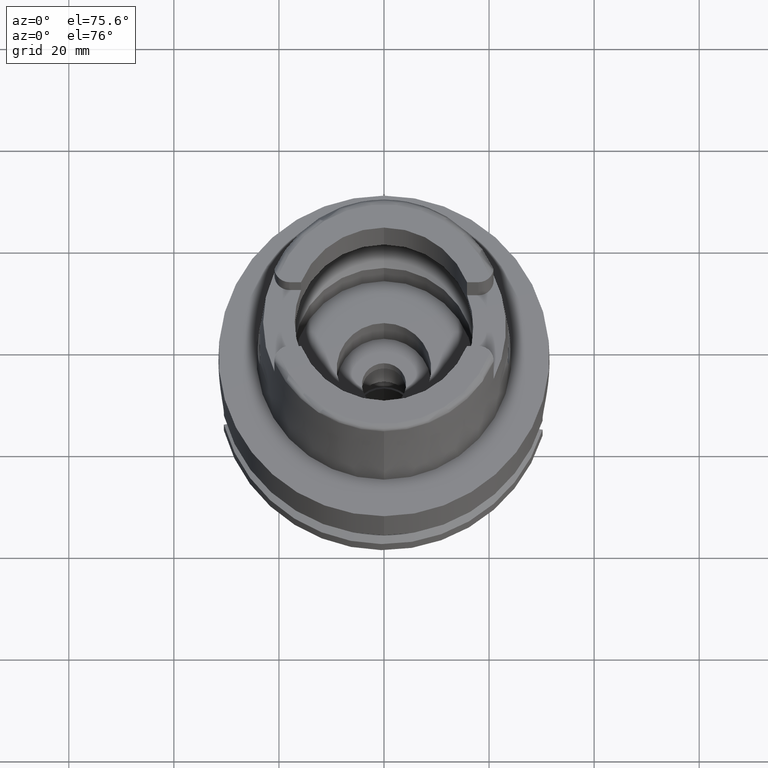
[diagram: clean part render]
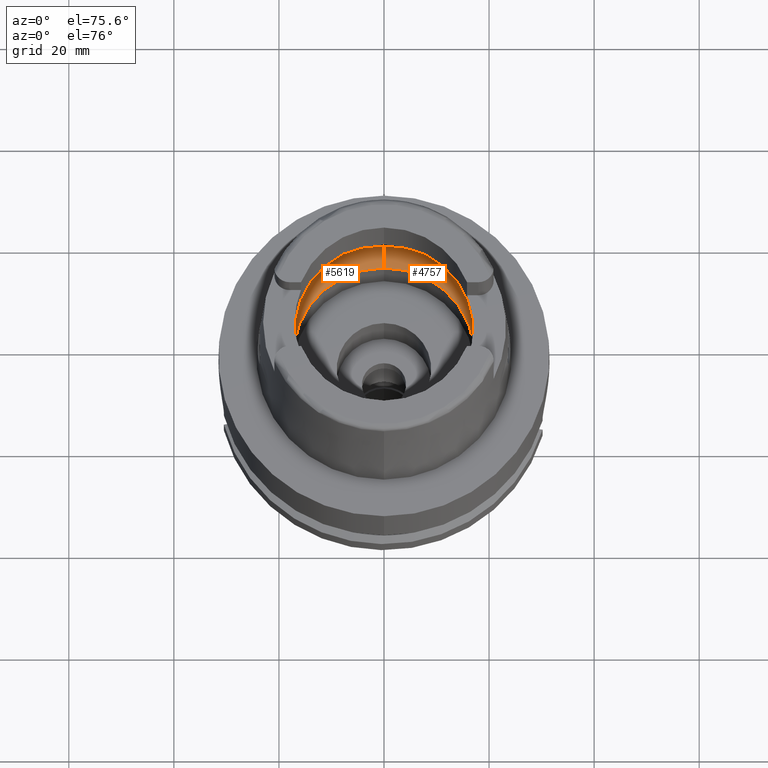
[diagram: same view with one multi-face feature highlighted, each face labeled with its STEP entity id]
A machine part, auxiliary view. The highlighted faces form ONE feature: a constant-radius fillet chain: 2 tangent blend faces with common blend radius 8 mm. The faces share edges in the B-rep.
Their STEP definitions:
[1] entity #4757 (Torus):
#22 = CARTESIAN_POINT ( 'NONE',  ( 0.0000000000000000000, 1.300407714776999850E-14, 6.186348233825000875 ) ) ;
#428 = CIRCLE ( 'NONE', #3576, 7.999999999999992895 ) ;
#443 = DIRECTION ( 'NONE',  ( 0.0000000000000000000, 0.0000000000000000000, -1.000000000000000000 ) ) ;
#448 = TOROIDAL_SURFACE ( 'NONE', #3597, 12.00000000000000000, 8.000000000000000000 ) ;
#707 = CARTESIAN_POINT ( 'NONE',  ( 19.91448758455283041, 1.610401092888342545, 5.612873060275781256 ) ) ;
#1073 = DIRECTION ( 'NONE',  ( 0.0000000000000000000, 0.0000000000000000000, -1.000000000000000000 ) ) ;
#1123 = DIRECTION ( 'NONE',  ( -1.000000000000000000, 0.0000000000000000000, 0.0000000000000000000 ) ) ;
#1145 = CARTESIAN_POINT ( 'NONE',  ( 19.88059069913698096, 2.158394907212736413, 5.925188472889173497 ) ) ;
#1162 = DIRECTION ( 'NONE',  ( 0.9922879323327794543, -0.1239542631244973381, 0.0000000000000000000 ) ) ;
#1213 = CARTESIAN_POINT ( 'NONE',  ( 19.92467892137705832, 1.357954799801602386, 5.504500142502863902 ) ) ;
#1405 = CARTESIAN_POINT ( 'NONE',  ( 19.92547292124042002, 1.334858430821708408, 5.495617893788528718 ) ) ;
#1511 = ORIENTED_EDGE ( 'NONE', *, *, #5877, .F. ) ;
#1598 = EDGE_CURVE ( 'NONE', #5377, #2093, #4919, .T. ) ;
#1600 = CARTESIAN_POINT ( 'NONE',  ( 19.92591877051988547, -1.321591573236226669, 5.490590281197120781 ) ) ;
#1606 = CARTESIAN_POINT ( 'NONE',  ( 0.0000000000000000000, -12.00000000000000000, 6.186348233825000875 ) ) ;
#1653 = CARTESIAN_POINT ( 'NONE',  ( 19.94340253376580918, -0.4848958549391096939, 5.274596266894370444 ) ) ;
#1687 = AXIS2_PLACEMENT_3D ( 'NONE', #2443, #3433, #4347 ) ;
#1690 = CARTESIAN_POINT ( 'NONE',  ( 19.92391832594157819, 1.379661882598573808, 5.512959091754853880 ) ) ;
#1722 = CARTESIAN_POINT ( 'NONE',  ( 19.93856728078323570, -0.8184016997814974603, 5.338643298039866814 ) ) ;
#1818 = CARTESIAN_POINT ( 'NONE',  ( 19.94501428475999560, 0.4959066315530564206, 5.249999999999998224 ) ) ;
#1915 = VERTEX_POINT ( 'NONE', #4480 ) ;
#2070 = CARTESIAN_POINT ( 'NONE',  ( 19.92647127844888999, -1.304861539412763838, 5.484338238559177015 ) ) ;
#2093 = VERTEX_POINT ( 'NONE', #5340 ) ;
#2163 = AXIS2_PLACEMENT_3D ( 'NONE', #4368, #5419, #2975 ) ;
#2266 = ORIENTED_EDGE ( 'NONE', *, *, #2594, .F. ) ;
#2443 = CARTESIAN_POINT ( 'NONE',  ( 0.0000000000000000000, 1.300407714776999850E-14, 6.186348233825000875 ) ) ;
#2577 = CARTESIAN_POINT ( 'NONE',  ( 19.93655259204049557, -0.9259503216086001354, 5.364516449228810657 ) ) ;
#2594 = EDGE_CURVE ( 'NONE', #5020, #4361, #428, .T. ) ;
#2633 = EDGE_LOOP ( 'NONE', ( #3096, #4007, #2266, #4338, #5872, #5812, #1511 ) ) ;
#2644 = CARTESIAN_POINT ( 'NONE',  ( 19.91820208730434061, 1.528663205433574479, 5.574770377084651507 ) ) ;
#2671 = CARTESIAN_POINT ( 'NONE',  ( 19.84575864665999845, 2.479085262491000030, 6.186348233825000875 ) ) ;
#2708 = CARTESIAN_POINT ( 'NONE',  ( 19.94501428475999916, 0.0000000000000000000, 5.250000000000000000 ) ) ;
#2837 = CARTESIAN_POINT ( 'NONE',  ( 19.84575864665999845, -2.479085262491000030, 6.186348233825000875 ) ) ;
#2843 = CARTESIAN_POINT ( 'NONE',  ( 0.0000000000000000000, 20.00000000000000000, 6.186348233825000875 ) ) ;
#2859 = DIRECTION ( 'NONE',  ( 0.0000000000000000000, -1.000000000000000000, 0.0000000000000000000 ) ) ;
#2975 = DIRECTION ( 'NONE',  ( 0.0000000000000000000, -1.000000000000000000, 0.0000000000000000000 ) ) ;
#3096 = ORIENTED_EDGE ( 'NONE', *, *, #5885, .F. ) ;
#3112 = CARTESIAN_POINT ( 'NONE',  ( 19.90056963212105856, 1.871013146673759620, 5.748159224276529145 ) ) ;
#3185 = EDGE_CURVE ( 'NONE', #3463, #2093, #3276, .T. ) ;
#3250 = B_SPLINE_CURVE_WITH_KNOTS ( 'NONE', 3,
 ( #2708, #4011, #1653, #1722, #2577, #3561, #5463, #5487, #4507, #2070, #3594, #1600, #5519, #4097, #5558 ),
 .UNSPECIFIED., .F., .F.,
 ( 4, 2, 2, 1, 1, 1, 2, 2, 4 ),
 ( 0.0000000000000000000, 0.2500000000000024425, 0.3750000000000036637, 0.4375000000000042188, 0.4687500000000043299, 0.4843750000000045519, 0.4921875000000045519, 0.5000000000000044409, 1.000000000000000000 ),
 .UNSPECIFIED. ) ;
#3276 = CIRCLE ( 'NONE', #3586, 7.999999999999992895 ) ;
#3433 = DIRECTION ( 'NONE',  ( 0.0000000000000000000, 0.0000000000000000000, -1.000000000000000000 ) ) ;
#3463 = VERTEX_POINT ( 'NONE', #4665 ) ;
#3561 = CARTESIAN_POINT ( 'NONE',  ( 19.93292615230355835, -1.081461345980708977, 5.408921120519162073 ) ) ;
#3576 = AXIS2_PLACEMENT_3D ( 'NONE', #4525, #5001, #5508 ) ;
#3577 = CARTESIAN_POINT ( 'NONE',  ( 0.0000000000000000000, 1.300407714776999850E-14, 6.186348233825000875 ) ) ;
#3586 = AXIS2_PLACEMENT_3D ( 'NONE', #1606, #1123, #3893 ) ;
#3594 = CARTESIAN_POINT ( 'NONE',  ( 19.92607463660266376, -1.316897531412940081, 5.488828948960996712 ) ) ;
#3597 = AXIS2_PLACEMENT_3D ( 'NONE', #22, #443, #2859 ) ;
#3699 = EDGE_CURVE ( 'NONE', #3463, #5020, #6001, .T. ) ;
#3893 = DIRECTION ( 'NONE',  ( 0.0000000000000000000, -0.6562500000000006661, -0.7545435292281016393 ) ) ;
#4007 = ORIENTED_EDGE ( 'NONE', *, *, #6109, .F. ) ;
#4011 = CARTESIAN_POINT ( 'NONE',  ( 19.94501428476000271, -0.2479294248912864707, 5.250000000000000000 ) ) ;
#4097 = CARTESIAN_POINT ( 'NONE',  ( 19.88332321193480468, -2.178370596672497328, 5.921391032934739229 ) ) ;
#4262 = CARTESIAN_POINT ( 'NONE',  ( 19.92518065070697730, 1.343443539031581091, 5.498897323770547629 ) ) ;
#4286 = CARTESIAN_POINT ( 'NONE',  ( 19.94501428475999916, 0.0000000000000000000, 5.250000000000000000 ) ) ;
#4321 = AXIS2_PLACEMENT_3D ( 'NONE', #3577, #1073, #1162 ) ;
#4338 = ORIENTED_EDGE ( 'NONE', *, *, #3699, .F. ) ;
#4347 = DIRECTION ( 'NONE',  ( 0.0000000000000000000, 1.000000000000000000, 0.0000000000000000000 ) ) ;
#4361 = VERTEX_POINT ( 'NONE', #2843 ) ;
#4368 = CARTESIAN_POINT ( 'NONE',  ( 0.0000000000000000000, 1.300407714776999850E-14, 0.1500000000000999700 ) ) ;
#4480 = CARTESIAN_POINT ( 'NONE',  ( 19.94501428475999916, 0.0000000000000000000, 5.250000000000000000 ) ) ;
#4507 = CARTESIAN_POINT ( 'NONE',  ( 19.92706151929149527, -1.286760697310783019, 5.477637534686534693 ) ) ;
#4525 = CARTESIAN_POINT ( 'NONE',  ( 0.0000000000000000000, 12.00000000000000000, 6.186348233825000875 ) ) ;
#4665 = CARTESIAN_POINT ( 'NONE',  ( 0.0000000000000000000, -17.25000000000000000, 0.1500000000000999700 ) ) ;
#4687 = B_SPLINE_CURVE_WITH_KNOTS ( 'NONE', 3,
 ( #5584, #5014, #1145, #3112, #5043, #707, #2644, #6020, #1690, #1213, #4262, #1405, #6170, #1818, #4286 ),
 .UNSPECIFIED., .F., .F.,
 ( 4, 2, 2, 1, 1, 1, 2, 2, 4 ),
 ( 0.0000000000000000000, 0.2499999999999967804, 0.3749999999999953371, 0.4374999999999946709, 0.4687499999999943934, 0.4843749999999942824, 0.4921874999999941713, 0.4999999999999941158, 1.000000000000000000 ),
 .UNSPECIFIED. ) ;
#4757 = ADVANCED_FACE ( 'NONE', ( #4783 ), #448, .F. ) ;
#4783 = FACE_OUTER_BOUND ( 'NONE', #2633, .T. ) ;
#4822 = CIRCLE ( 'NONE', #1687, 20.00000000000000000 ) ;
#4919 = CIRCLE ( 'NONE', #4321, 20.00000000000001421 ) ;
#5001 = DIRECTION ( 'NONE',  ( 1.000000000000000000, 0.0000000000000000000, 0.0000000000000000000 ) ) ;
#5014 = CARTESIAN_POINT ( 'NONE',  ( 19.86454025209263818, 2.328733350789800483, 6.053874409961354175 ) ) ;
#5020 = VERTEX_POINT ( 'NONE', #5924 ) ;
#5043 = CARTESIAN_POINT ( 'NONE',  ( 19.90654648685201167, 1.769930501896109565, 5.691839127009703958 ) ) ;
#5340 = CARTESIAN_POINT ( 'NONE',  ( 0.0000000000000000000, -20.00000000000000000, 6.186348233825000875 ) ) ;
#5377 = VERTEX_POINT ( 'NONE', #2837 ) ;
#5419 = DIRECTION ( 'NONE',  ( 0.0000000000000000000, 0.0000000000000000000, 1.000000000000000000 ) ) ;
#5463 = CARTESIAN_POINT ( 'NONE',  ( 19.93096183077939187, -1.157766814691080004, 5.432522770394313305 ) ) ;
#5487 = CARTESIAN_POINT ( 'NONE',  ( 19.92840569443704268, -1.244197915449397618, 5.462253908760141385 ) ) ;
#5508 = DIRECTION ( 'NONE',  ( 0.0000000000000000000, 0.6562500000000006661, -0.7545435292281016393 ) ) ;
#5519 = CARTESIAN_POINT ( 'NONE',  ( 19.90996142065803554, -1.795771334863238700, 5.670286579067099986 ) ) ;
#5558 = CARTESIAN_POINT ( 'NONE',  ( 19.84575864665999845, -2.479085262491000030, 6.186348233825000875 ) ) ;
#5584 = CARTESIAN_POINT ( 'NONE',  ( 19.84575864665999845, 2.479085262491000030, 6.186348233825000875 ) ) ;
#5787 = VERTEX_POINT ( 'NONE', #2671 ) ;
#5812 = ORIENTED_EDGE ( 'NONE', *, *, #1598, .F. ) ;
#5872 = ORIENTED_EDGE ( 'NONE', *, *, #3185, .T. ) ;
#5877 = EDGE_CURVE ( 'NONE', #1915, #5377, #3250, .T. ) ;
#5885 = EDGE_CURVE ( 'NONE', #5787, #1915, #4687, .T. ) ;
#5924 = CARTESIAN_POINT ( 'NONE',  ( 0.0000000000000000000, 17.25000000000000000, 0.1500000000000999700 ) ) ;
#6001 = CIRCLE ( 'NONE', #2163, 17.25000000000000000 ) ;
#6020 = CARTESIAN_POINT ( 'NONE',  ( 19.92208759317466615, 1.429891859895263462, 5.533074159369055778 ) ) ;
#6109 = EDGE_CURVE ( 'NONE', #4361, #5787, #4822, .T. ) ;
#6170 = CARTESIAN_POINT ( 'NONE',  ( 19.93856764937210002, 0.9457748455398172771, 5.348171637976009585 ) ) ;
[2] entity #5619 (Torus):
#42 = ORIENTED_EDGE ( 'NONE', *, *, #2594, .T. ) ;
#99 = DIRECTION ( 'NONE',  ( 0.0000000000000000000, 1.000000000000000000, 0.0000000000000000000 ) ) ;
#276 = VERTEX_POINT ( 'NONE', #5995 ) ;
#384 = CARTESIAN_POINT ( 'NONE',  ( -19.92607479997090181, 1.316895428534838430, 5.488828160326498562 ) ) ;
#410 = CARTESIAN_POINT ( 'NONE',  ( -19.93292625657250738, 1.081460392890758682, 5.408920836530865195 ) ) ;
#419 = CARTESIAN_POINT ( 'NONE',  ( -19.92517794959957911, -1.343610331872348684, 5.498961333861721812 ) ) ;
#424 = ORIENTED_EDGE ( 'NONE', *, *, #2207, .F. ) ;
#428 = CIRCLE ( 'NONE', #3576, 7.999999999999992895 ) ;
#449 = EDGE_CURVE ( 'NONE', #2093, #3363, #6147, .T. ) ;
#709 = CARTESIAN_POINT ( 'NONE',  ( -19.94340254766833098, 0.4848963393951380429, 5.274596353473929966 ) ) ;
#769 = CIRCLE ( 'NONE', #5221, 17.25000000000000000 ) ;
#815 = CARTESIAN_POINT ( 'NONE',  ( -19.92467624382528868, -1.358118166560958739, 5.504563616461238595 ) ) ;
#882 = CARTESIAN_POINT ( 'NONE',  ( -19.90056792326557300, -1.871072945708251334, 5.748194156555812562 ) ) ;
#1123 = DIRECTION ( 'NONE',  ( -1.000000000000000000, 0.0000000000000000000, 0.0000000000000000000 ) ) ;
#1146 = DIRECTION ( 'NONE',  ( 0.0000000000000000000, 0.0000000000000000000, -1.000000000000000000 ) ) ;
#1240 = AXIS2_PLACEMENT_3D ( 'NONE', #1521, #4780, #3457 ) ;
#1521 = CARTESIAN_POINT ( 'NONE',  ( 0.0000000000000000000, 1.300407714776999850E-14, 6.186348233825000875 ) ) ;
#1606 = CARTESIAN_POINT ( 'NONE',  ( 0.0000000000000000000, -12.00000000000000000, 6.186348233825000875 ) ) ;
#1693 = CARTESIAN_POINT ( 'NONE',  ( -19.94501428475999916, 0.2479298819758197214, 5.250000000000000000 ) ) ;
#1841 = CARTESIAN_POINT ( 'NONE',  ( -19.93096195199203180, 1.157765540341131993, 5.432522363494912021 ) ) ;
#2093 = VERTEX_POINT ( 'NONE', #5340 ) ;
#2162 = CARTESIAN_POINT ( 'NONE',  ( -19.92647143839581148, 1.304859504442483997, 5.484337483335712804 ) ) ;
#2207 = EDGE_CURVE ( 'NONE', #3202, #276, #5352, .T. ) ;
#2283 = AXIS2_PLACEMENT_3D ( 'NONE', #5840, #4382, #3858 ) ;
#2498 = EDGE_CURVE ( 'NONE', #276, #4361, #6182, .T. ) ;
#2518 = CARTESIAN_POINT ( 'NONE',  ( 0.0000000000000000000, 1.300407714776999850E-14, 0.1500000000000999700 ) ) ;
#2594 = EDGE_CURVE ( 'NONE', #5020, #4361, #428, .T. ) ;
#2646 = CARTESIAN_POINT ( 'NONE',  ( -19.92706167414716134, 1.286758763267425554, 5.477636828631165855 ) ) ;
#2742 = CARTESIAN_POINT ( 'NONE',  ( -19.86453971831038245, -2.328737623861152795, 6.053878174929121059 ) ) ;
#2770 = CARTESIAN_POINT ( 'NONE',  ( -19.84575864665999845, -2.479085262491000030, 6.186348233825000875 ) ) ;
#2807 = CARTESIAN_POINT ( 'NONE',  ( -19.91819969907412258, -1.528787881862460729, 5.574826406029533388 ) ) ;
#2843 = CARTESIAN_POINT ( 'NONE',  ( 0.0000000000000000000, 20.00000000000000000, 6.186348233825000875 ) ) ;
#3029 = CARTESIAN_POINT ( 'NONE',  ( -19.94501428475999916, 0.0000000000000000000, 5.250000000000000000 ) ) ;
#3081 = DIRECTION ( 'NONE',  ( 0.0000000000000000000, -1.000000000000000000, 0.0000000000000000000 ) ) ;
#3085 = EDGE_LOOP ( 'NONE', ( #5004, #5914, #5532, #42, #4068, #424, #5595 ) ) ;
#3185 = EDGE_CURVE ( 'NONE', #3463, #2093, #3276, .T. ) ;
#3202 = VERTEX_POINT ( 'NONE', #3029 ) ;
#3245 = CARTESIAN_POINT ( 'NONE',  ( -19.94501428475999916, 0.0000000000000000000, 5.250000000000000000 ) ) ;
#3276 = CIRCLE ( 'NONE', #3586, 7.999999999999992895 ) ;
#3297 = CARTESIAN_POINT ( 'NONE',  ( -19.90996163222827420, 1.795769164605748314, 5.670285425948012659 ) ) ;
#3340 = CARTESIAN_POINT ( 'NONE',  ( -19.90654456091240476, -1.770007383644878418, 5.691881026691317125 ) ) ;
#3363 = VERTEX_POINT ( 'NONE', #5970 ) ;
#3457 = DIRECTION ( 'NONE',  ( -0.9922879323327794543, 0.1239542631244973381, 0.0000000000000000000 ) ) ;
#3463 = VERTEX_POINT ( 'NONE', #4665 ) ;
#3530 = AXIS2_PLACEMENT_3D ( 'NONE', #6074, #1146, #3081 ) ;
#3576 = AXIS2_PLACEMENT_3D ( 'NONE', #4525, #5001, #5508 ) ;
#3586 = AXIS2_PLACEMENT_3D ( 'NONE', #1606, #1123, #3893 ) ;
#3779 = CARTESIAN_POINT ( 'NONE',  ( -19.92591893665112224, 1.321589401495853577, 5.490589463356736033 ) ) ;
#3792 = CARTESIAN_POINT ( 'NONE',  ( -19.92547016831344209, -1.335028391746079013, 5.495682638901432604 ) ) ;
#3858 = DIRECTION ( 'NONE',  ( 0.0000000000000000000, -1.000000000000000000, 0.0000000000000000000 ) ) ;
#3893 = DIRECTION ( 'NONE',  ( 0.0000000000000000000, -0.6562500000000006661, -0.7545435292281016393 ) ) ;
#3952 = FACE_OUTER_BOUND ( 'NONE', #3085, .T. ) ;
#4010 = TOROIDAL_SURFACE ( 'NONE', #2283, 12.00000000000000000, 8.000000000000000000 ) ;
#4068 = ORIENTED_EDGE ( 'NONE', *, *, #2498, .F. ) ;
#4239 = CARTESIAN_POINT ( 'NONE',  ( -19.93856674119000161, -0.9459643382330632511, 5.348222180792832070 ) ) ;
#4257 = CARTESIAN_POINT ( 'NONE',  ( -19.92840583769821805, 1.244196210291986793, 5.462253310886856283 ) ) ;
#4266 = CARTESIAN_POINT ( 'NONE',  ( -19.91448534792914060, -1.610508948442765709, 5.612924528901617194 ) ) ;
#4361 = VERTEX_POINT ( 'NONE', #2843 ) ;
#4382 = DIRECTION ( 'NONE',  ( 0.0000000000000000000, 0.0000000000000000000, -1.000000000000000000 ) ) ;
#4446 = DIRECTION ( 'NONE',  ( 0.0000000000000000000, 0.0000000000000000000, 1.000000000000000000 ) ) ;
#4525 = CARTESIAN_POINT ( 'NONE',  ( 0.0000000000000000000, 12.00000000000000000, 6.186348233825000875 ) ) ;
#4539 = CARTESIAN_POINT ( 'NONE',  ( -19.93856733639333711, 0.8184016122553290362, 5.338643284459297256 ) ) ;
#4665 = CARTESIAN_POINT ( 'NONE',  ( 0.0000000000000000000, -17.25000000000000000, 0.1500000000000999700 ) ) ;
#4735 = CARTESIAN_POINT ( 'NONE',  ( -19.94501428475999560, -0.4960410447512794141, 5.249999999999999112 ) ) ;
#4751 = CARTESIAN_POINT ( 'NONE',  ( -19.93655266502874923, 0.9259499426782410447, 5.364516364714504881 ) ) ;
#4780 = DIRECTION ( 'NONE',  ( 0.0000000000000000000, 0.0000000000000000000, -1.000000000000000000 ) ) ;
#5001 = DIRECTION ( 'NONE',  ( 1.000000000000000000, 0.0000000000000000000, 0.0000000000000000000 ) ) ;
#5004 = ORIENTED_EDGE ( 'NONE', *, *, #449, .F. ) ;
#5017 = CARTESIAN_POINT ( 'NONE',  ( -19.84575864665999845, 2.479085262491000030, 6.186348233825000875 ) ) ;
#5020 = VERTEX_POINT ( 'NONE', #5924 ) ;
#5045 = CARTESIAN_POINT ( 'NONE',  ( -19.88332336789493837, 2.178369348231663061, 5.921389932943862178 ) ) ;
#5213 = CARTESIAN_POINT ( 'NONE',  ( -19.88058967141808253, -2.158413397975924575, 5.925203673425760265 ) ) ;
#5221 = AXIS2_PLACEMENT_3D ( 'NONE', #2518, #4446, #99 ) ;
#5340 = CARTESIAN_POINT ( 'NONE',  ( 0.0000000000000000000, -20.00000000000000000, 6.186348233825000875 ) ) ;
#5352 = B_SPLINE_CURVE_WITH_KNOTS ( 'NONE', 3,
 ( #6023, #1693, #709, #4539, #4751, #410, #1841, #4257, #2646, #2162, #384, #3779, #3297, #5045, #5017 ),
 .UNSPECIFIED., .F., .F.,
 ( 4, 2, 2, 1, 1, 1, 2, 2, 4 ),
 ( 0.0000000000000000000, 0.2500000000000007216, 0.3750000000000008882, 0.4375000000000010547, 0.4687500000000009992, 0.4843750000000011657, 0.4921875000000013323, 0.5000000000000014433, 1.000000000000000000 ),
 .UNSPECIFIED. ) ;
#5390 = EDGE_CURVE ( 'NONE', #3363, #3202, #5895, .T. ) ;
#5508 = DIRECTION ( 'NONE',  ( 0.0000000000000000000, 0.6562500000000006661, -0.7545435292281016393 ) ) ;
#5532 = ORIENTED_EDGE ( 'NONE', *, *, #5741, .F. ) ;
#5595 = ORIENTED_EDGE ( 'NONE', *, *, #5390, .F. ) ;
#5619 = ADVANCED_FACE ( 'NONE', ( #3952 ), #4010, .F. ) ;
#5680 = CARTESIAN_POINT ( 'NONE',  ( -19.92391568384000777, -1.379820152732496918, 5.513021742193904728 ) ) ;
#5741 = EDGE_CURVE ( 'NONE', #5020, #3463, #769, .T. ) ;
#5744 = CARTESIAN_POINT ( 'NONE',  ( -19.92208503460736679, -1.430038535463957761, 5.533134759046327567 ) ) ;
#5840 = CARTESIAN_POINT ( 'NONE',  ( 0.0000000000000000000, 1.300407714776999850E-14, 6.186348233825000875 ) ) ;
#5895 = B_SPLINE_CURVE_WITH_KNOTS ( 'NONE', 3,
 ( #2770, #2742, #5213, #882, #3340, #4266, #2807, #5744, #5680, #815, #419, #3792, #4239, #4735, #3245 ),
 .UNSPECIFIED., .F., .F.,
 ( 4, 2, 2, 1, 1, 1, 2, 2, 4 ),
 ( 0.0000000000000000000, 0.2500000000000023315, 0.3750000000000032752, 0.4375000000000036082, 0.4687500000000038858, 0.4843750000000041633, 0.4921875000000042744, 0.5000000000000043299, 1.000000000000000000 ),
 .UNSPECIFIED. ) ;
#5914 = ORIENTED_EDGE ( 'NONE', *, *, #3185, .F. ) ;
#5924 = CARTESIAN_POINT ( 'NONE',  ( 0.0000000000000000000, 17.25000000000000000, 0.1500000000000999700 ) ) ;
#5970 = CARTESIAN_POINT ( 'NONE',  ( -19.84575864665999845, -2.479085262491000030, 6.186348233825000875 ) ) ;
#5995 = CARTESIAN_POINT ( 'NONE',  ( -19.84575864665999845, 2.479085262491000030, 6.186348233825000875 ) ) ;
#6023 = CARTESIAN_POINT ( 'NONE',  ( -19.94501428475999916, 0.0000000000000000000, 5.250000000000000000 ) ) ;
#6074 = CARTESIAN_POINT ( 'NONE',  ( 0.0000000000000000000, 1.300407714776999850E-14, 6.186348233825000875 ) ) ;
#6147 = CIRCLE ( 'NONE', #3530, 20.00000000000000000 ) ;
#6182 = CIRCLE ( 'NONE', #1240, 20.00000000000001421 ) ;